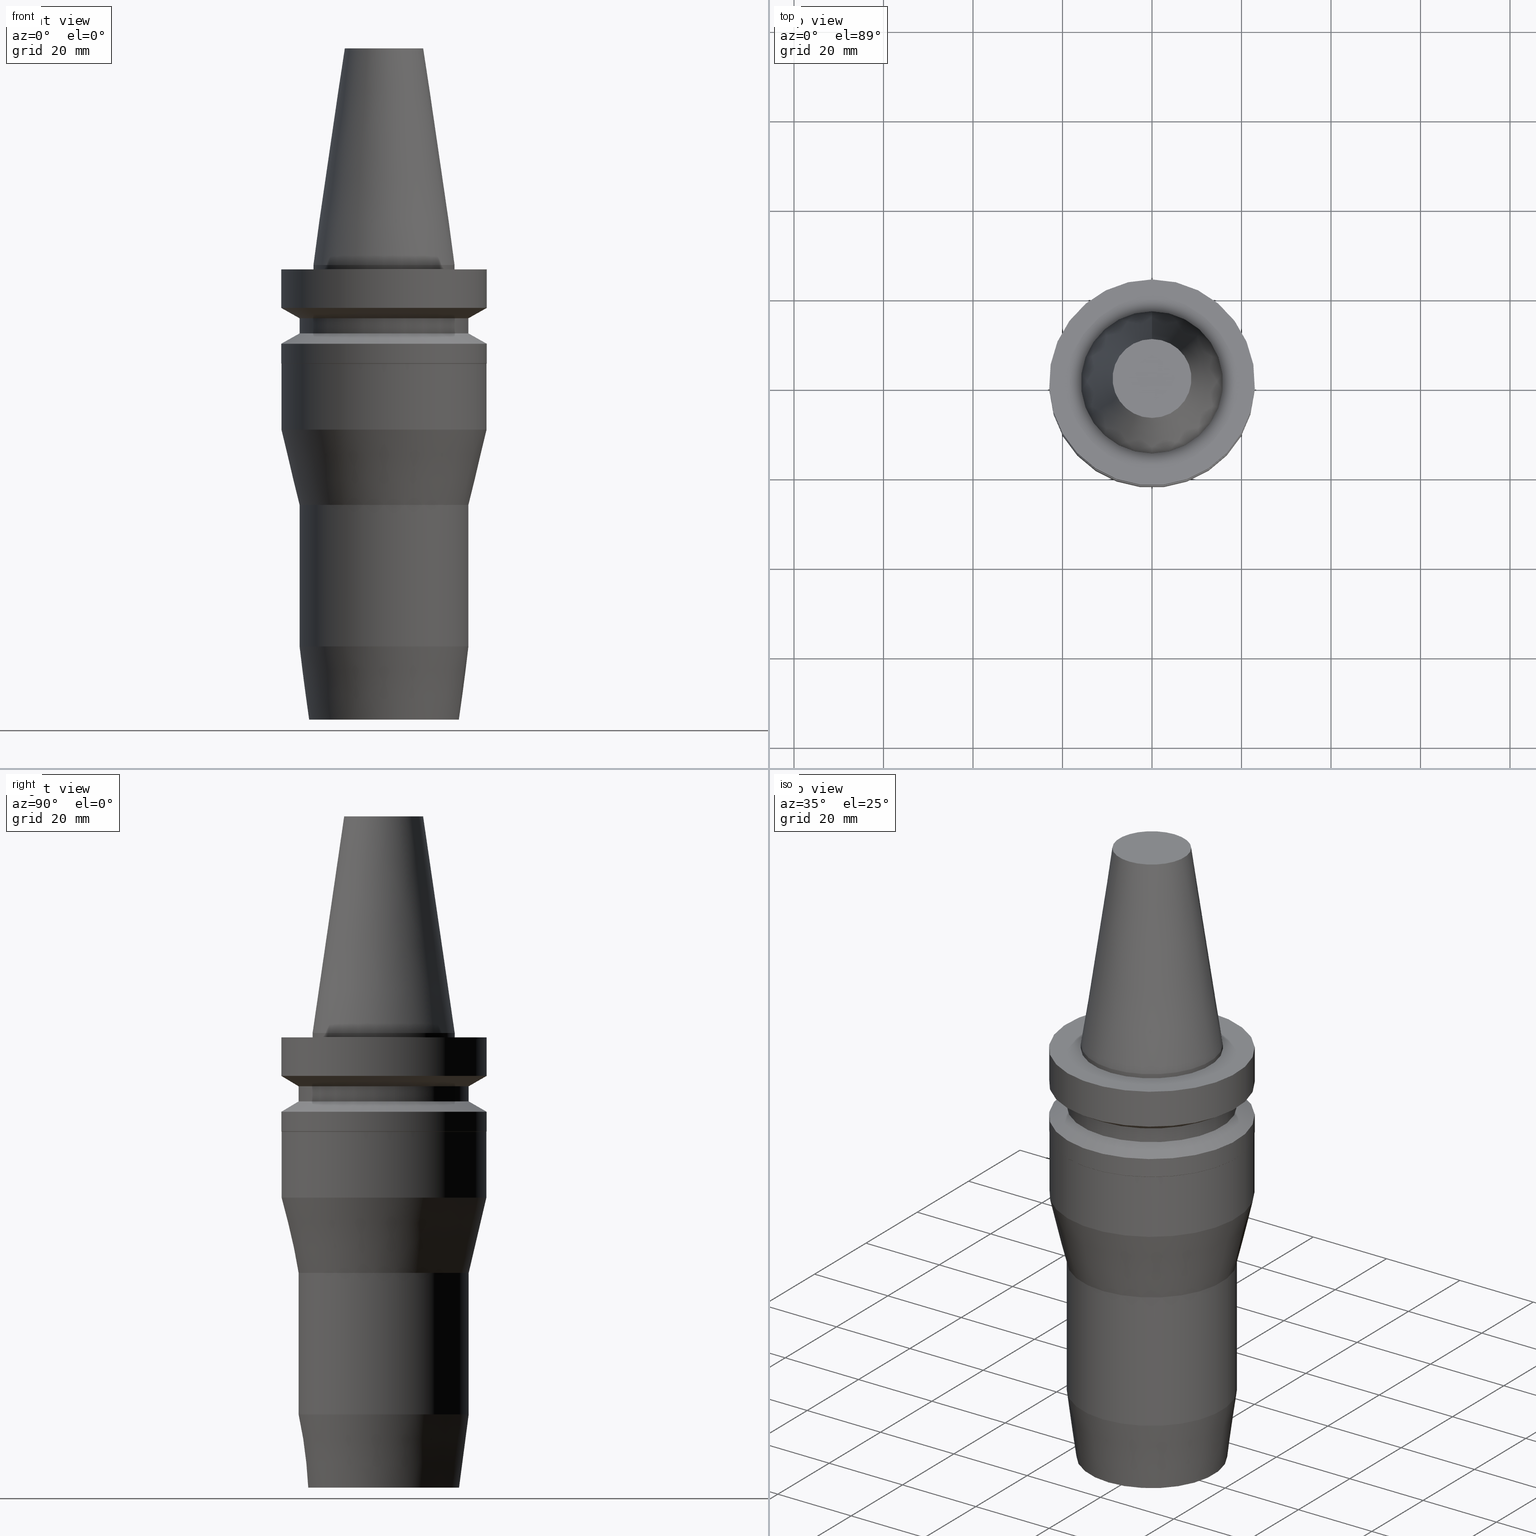
[diagram: canonical four-view strip — front | top / right | iso, engineering-drawing reading convention]
A machine part, canonical four-view strip (front | top / right | iso — engineering-drawing reading convention). The complete STEP part file that produces these views, byte-faithful:
ISO-10303-21;
HEADER;
FILE_DESCRIPTION((''),'1');
FILE_NAME('V:/90_\X2\53D65F9730C730FC30BF\X0\/00_\X2\6DE18DEF30C730FC30BF\X0\/ALL/BBT-BKUS\X2\FF76FF80FF9BFF78FF9E752852A05DE556F3\X0\201801/BBT30-HDC/BBT30-HDC.625-4.stp','2018-02-07T04:37:06',(''),(''),'Spatial Interop R21 SP3','Kubotek KeyCreator 2011 V10.0.2 (22737)',' ');
FILE_SCHEMA(('automotive_design'));
ENDSEC;
DATA;
#1=MECHANICAL_DESIGN_GEOMETRIC_PRESENTATION_REPRESENTATION(' ',(#10,#11,#12,#13,#14,#15,#16,#17,#18,#19,#20,#21,#22,#23,#24,#25,#26,#27,#28,#29,#30,#31,#32,#33,#34,#35,#36,#37,#38,#39),#6);
#2=PRODUCT_DEFINITION_CONTEXT('',#40,'design');
#3=APPLICATION_PROTOCOL_DEFINITION('INTERNATIONAL STANDARD','automotive_design',1994,#40);
#4=PRODUCT_CATEGORY_RELATIONSHIP('NONE','NONE',#41,#42);
#5=SHAPE_DEFINITION_REPRESENTATION(#43,#44);
#6= (GEOMETRIC_REPRESENTATION_CONTEXT(3)GLOBAL_UNCERTAINTY_ASSIGNED_CONTEXT((#47))GLOBAL_UNIT_ASSIGNED_CONTEXT((#49,#50,#51))REPRESENTATION_CONTEXT('NONE','WORKSPACE'));
#10=STYLED_ITEM('',(#53),#54);
#11=STYLED_ITEM('',(#55),#56);
#12=STYLED_ITEM('',(#57),#58);
#13=STYLED_ITEM('',(#59,#60),#61);
#14=STYLED_ITEM('',(#62),#63);
#15=STYLED_ITEM('',(#64),#65);
#16=STYLED_ITEM('',(#66,#67),#68);
#17=STYLED_ITEM('',(#69,#70),#71);
#18=STYLED_ITEM('',(#72),#73);
#19=STYLED_ITEM('',(#74,#75),#76);
#20=STYLED_ITEM('',(#77,#78),#79);
#21=STYLED_ITEM('',(#80,#81),#82);
#22=STYLED_ITEM('',(#83),#84);
#23=STYLED_ITEM('',(#85),#86);
#24=STYLED_ITEM('',(#87),#88);
#25=STYLED_ITEM('',(#89,#90),#91);
#26=STYLED_ITEM('',(#92),#93);
#27=STYLED_ITEM('',(#94,#95),#96);
#28=STYLED_ITEM('',(#97,#98),#99);
#29=STYLED_ITEM('',(#100,#101),#102);
#30=STYLED_ITEM('',(#103,#104),#105);
#31=STYLED_ITEM('',(#106),#107);
#32=STYLED_ITEM('',(#108,#109),#110);
#33=STYLED_ITEM('',(#111,#112),#113);
#34=STYLED_ITEM('',(#114),#115);
#35=STYLED_ITEM('',(#116),#117);
#36=STYLED_ITEM('',(#118,#119),#120);
#37=STYLED_ITEM('',(#121),#122);
#38=STYLED_ITEM('',(#123,#124),#125);
#39=STYLED_ITEM('',(#126,#127),#128);
#40=APPLICATION_CONTEXT(' ');
#41=PRODUCT_CATEGORY('part','NONE');
#42=PRODUCT_RELATED_PRODUCT_CATEGORY('detail',' ',(#129));
#43=PRODUCT_DEFINITION_SHAPE('NONE','NONE',#130);
#44=ADVANCED_BREP_SHAPE_REPRESENTATION('Unnamed[1]',(#110,#131),#6);
#47=UNCERTAINTY_MEASURE_WITH_UNIT(LENGTH_MEASURE(1.0E-006),#49,'','');
#49= (CONVERSION_BASED_UNIT('MILLIMETRE',#134)LENGTH_UNIT()NAMED_UNIT(#137));
#50= (NAMED_UNIT(#139)PLANE_ANGLE_UNIT()SI_UNIT($,.RADIAN.));
#51= (NAMED_UNIT(#139)SOLID_ANGLE_UNIT()SI_UNIT($,.STERADIAN.));
#53=PRESENTATION_STYLE_ASSIGNMENT((#145));
#54=EDGE_CURVE('Unnamed[1]',#146,#146,#147,.T.);
#55=PRESENTATION_STYLE_ASSIGNMENT((#148));
#56=EDGE_CURVE('Unnamed[1]',#149,#149,#150,.T.);
#57=PRESENTATION_STYLE_ASSIGNMENT((#151));
#58=EDGE_CURVE('Unnamed[1]',#152,#152,#153,.T.);
#59=PRESENTATION_STYLE_ASSIGNMENT((#154));
#60=PRESENTATION_STYLE_ASSIGNMENT((#155));
#61=ADVANCED_FACE('Unnamed[1]',(#156,#157),#158,.T.);
#62=PRESENTATION_STYLE_ASSIGNMENT((#159));
#63=EDGE_CURVE('Unnamed[1]',#160,#160,#161,.T.);
#64=PRESENTATION_STYLE_ASSIGNMENT((#162));
#65=EDGE_CURVE('Unnamed[1]',#163,#163,#164,.T.);
#66=PRESENTATION_STYLE_ASSIGNMENT((#165));
#67=PRESENTATION_STYLE_ASSIGNMENT((#166));
#68=ADVANCED_FACE('Unnamed[1]',(#167,#168),#169,.T.);
#69=PRESENTATION_STYLE_ASSIGNMENT((#170));
#70=PRESENTATION_STYLE_ASSIGNMENT((#171));
#71=ADVANCED_FACE('Unnamed[1]',(#172,#173),#174,.T.);
#72=PRESENTATION_STYLE_ASSIGNMENT((#175));
#73=EDGE_CURVE('Unnamed[1]',#176,#176,#177,.T.);
#74=PRESENTATION_STYLE_ASSIGNMENT((#178));
#75=PRESENTATION_STYLE_ASSIGNMENT((#179));
#76=ADVANCED_FACE('Unnamed[1]',(#180,#181),#182,.T.);
#77=PRESENTATION_STYLE_ASSIGNMENT((#183));
#78=PRESENTATION_STYLE_ASSIGNMENT((#184));
#79=ADVANCED_FACE('Unnamed[1]',(#185),#186,.T.);
#80=PRESENTATION_STYLE_ASSIGNMENT((#187));
#81=PRESENTATION_STYLE_ASSIGNMENT((#188));
#82=ADVANCED_FACE('Unnamed[1]',(#189,#190),#191,.T.);
#83=PRESENTATION_STYLE_ASSIGNMENT((#192));
#84=EDGE_CURVE('Unnamed[1]',#193,#193,#194,.T.);
#85=PRESENTATION_STYLE_ASSIGNMENT((#195));
#86=EDGE_CURVE('Unnamed[1]',#196,#196,#197,.T.);
#87=PRESENTATION_STYLE_ASSIGNMENT((#198));
#88=EDGE_CURVE('Unnamed[1]',#199,#199,#200,.T.);
#89=PRESENTATION_STYLE_ASSIGNMENT((#201));
#90=PRESENTATION_STYLE_ASSIGNMENT((#202));
#91=ADVANCED_FACE('Unnamed[1]',(#203,#204),#205,.T.);
#92=PRESENTATION_STYLE_ASSIGNMENT((#206));
#93=EDGE_CURVE('Unnamed[1]',#207,#207,#208,.T.);
#94=PRESENTATION_STYLE_ASSIGNMENT((#209));
#95=PRESENTATION_STYLE_ASSIGNMENT((#210));
#96=ADVANCED_FACE('Unnamed[1]',(#211),#212,.T.);
#97=PRESENTATION_STYLE_ASSIGNMENT((#213));
#98=PRESENTATION_STYLE_ASSIGNMENT((#214));
#99=ADVANCED_FACE('Unnamed[1]',(#215,#216),#217,.T.);
#100=PRESENTATION_STYLE_ASSIGNMENT((#218));
#101=PRESENTATION_STYLE_ASSIGNMENT((#219));
#102=ADVANCED_FACE('Unnamed[1]',(#220,#221),#222,.T.);
#103=PRESENTATION_STYLE_ASSIGNMENT((#223));
#104=PRESENTATION_STYLE_ASSIGNMENT((#224));
#105=ADVANCED_FACE('Unnamed[1]',(#225,#226),#227,.T.);
#106=PRESENTATION_STYLE_ASSIGNMENT((#228));
#107=EDGE_CURVE('Unnamed[1]',#229,#229,#230,.T.);
#108=PRESENTATION_STYLE_ASSIGNMENT((#231));
#109=PRESENTATION_STYLE_ASSIGNMENT((#232));
#110=MANIFOLD_SOLID_BREP('Unnamed[1]',#233);
#111=PRESENTATION_STYLE_ASSIGNMENT((#234));
#112=PRESENTATION_STYLE_ASSIGNMENT((#235));
#113=ADVANCED_FACE('Unnamed[1]',(#236,#237),#238,.T.);
#114=PRESENTATION_STYLE_ASSIGNMENT((#239));
#115=EDGE_CURVE('Unnamed[1]',#240,#240,#241,.T.);
#116=PRESENTATION_STYLE_ASSIGNMENT((#242));
#117=EDGE_CURVE('Unnamed[1]',#243,#243,#244,.T.);
#118=PRESENTATION_STYLE_ASSIGNMENT((#245));
#119=PRESENTATION_STYLE_ASSIGNMENT((#246));
#120=ADVANCED_FACE('Unnamed[1]',(#247,#248),#249,.T.);
#121=PRESENTATION_STYLE_ASSIGNMENT((#250));
#122=EDGE_CURVE('Unnamed[1]',#251,#251,#252,.T.);
#123=PRESENTATION_STYLE_ASSIGNMENT((#253));
#124=PRESENTATION_STYLE_ASSIGNMENT((#254));
#125=ADVANCED_FACE('Unnamed[1]',(#255,#256),#257,.T.);
#126=PRESENTATION_STYLE_ASSIGNMENT((#258));
#127=PRESENTATION_STYLE_ASSIGNMENT((#259));
#128=ADVANCED_FACE('Unnamed[1]',(#260,#261),#262,.T.);
#129=PRODUCT('Unnamed[1]','Unnamed[1]','PART-Unnamed[1]-DESC',(#263));
#130=PRODUCT_DEFINITION('NONE','NONE',#264,#2);
#131=AXIS2_PLACEMENT_3D('',#265,#266,#267);
#134=LENGTH_MEASURE_WITH_UNIT(LENGTH_MEASURE(1.0),#268);
#137=DIMENSIONAL_EXPONENTS(1.0,0.0,0.0,0.0,0.0,0.0,0.0);
#139=DIMENSIONAL_EXPONENTS(0.0,0.0,0.0,0.0,0.0,0.0,0.0);
#145=CURVE_STYLE('',#269,POSITIVE_LENGTH_MEASURE(1000.0),#270);
#146=VERTEX_POINT('',#271);
#147=CIRCLE('',#272,18.9999999999981);
#148=CURVE_STYLE('',#273,POSITIVE_LENGTH_MEASURE(1000.0),#274);
#149=VERTEX_POINT('',#275);
#150=CIRCLE('',#276,16.8455306051981);
#151=CURVE_STYLE('',#277,POSITIVE_LENGTH_MEASURE(1000.0),#278);
#152=VERTEX_POINT('',#279);
#153=CIRCLE('',#280,23.0);
#154=SURFACE_STYLE_USAGE(.BOTH.,#281);
#155=CURVE_STYLE('',#282,POSITIVE_LENGTH_MEASURE(1000.0),#283);
#156=FACE_BOUND('',#284,.T.);
#157=FACE_BOUND('',#285,.T.);
#158=CYLINDRICAL_SURFACE('',#286,22.9499999999998);
#159=CURVE_STYLE('',#287,POSITIVE_LENGTH_MEASURE(1000.0),#288);
#160=VERTEX_POINT('',#289);
#161=CIRCLE('',#290,8.81650000198669);
#162=CURVE_STYLE('',#291,POSITIVE_LENGTH_MEASURE(1000.0),#292);
#163=VERTEX_POINT('',#293);
#164=CIRCLE('',#294,22.9500000000002);
#165=SURFACE_STYLE_USAGE(.BOTH.,#295);
#166=CURVE_STYLE('',#296,POSITIVE_LENGTH_MEASURE(1000.0),#297);
#167=FACE_OUTER_BOUND('',#298,.T.);
#168=FACE_BOUND('',#299,.T.);
#169=PLANE('',#300);
#170=SURFACE_STYLE_USAGE(.BOTH.,#301);
#171=CURVE_STYLE('',#302,POSITIVE_LENGTH_MEASURE(1000.0),#303);
#172=FACE_BOUND('',#304,.T.);
#173=FACE_BOUND('',#305,.T.);
#174=CONICAL_SURFACE('',#306,22.9749999999997,0.785398163397164);
#175=CURVE_STYLE('',#307,POSITIVE_LENGTH_MEASURE(1000.0),#308);
#176=VERTEX_POINT('',#309);
#177=CIRCLE('',#310,15.875);
#178=SURFACE_STYLE_USAGE(.BOTH.,#311);
#179=CURVE_STYLE('',#312,POSITIVE_LENGTH_MEASURE(1000.0),#313);
#180=FACE_BOUND('',#314,.T.);
#181=FACE_BOUND('',#315,.T.);
#182=CONICAL_SURFACE('',#316,17.9227653025981,0.130899693899579);
#183=SURFACE_STYLE_USAGE(.BOTH.,#317);
#184=CURVE_STYLE('',#318,POSITIVE_LENGTH_MEASURE(1000.0),#319);
#185=FACE_OUTER_BOUND('',#320,.T.);
#186=PLANE('',#321);
#187=SURFACE_STYLE_USAGE(.BOTH.,#322);
#188=CURVE_STYLE('',#323,POSITIVE_LENGTH_MEASURE(1000.0),#324);
#189=FACE_BOUND('',#325,.T.);
#190=FACE_BOUND('',#326,.T.);
#191=CONICAL_SURFACE('',#327,21.0,1.04719755058881);
#192=CURVE_STYLE('',#328,POSITIVE_LENGTH_MEASURE(1000.0),#329);
#193=VERTEX_POINT('',#330);
#194=CIRCLE('',#331,23.0);
#195=CURVE_STYLE('',#332,POSITIVE_LENGTH_MEASURE(1000.0),#333);
#196=VERTEX_POINT('',#334);
#197=CIRCLE('',#335,22.9499999999995);
#198=CURVE_STYLE('',#336,POSITIVE_LENGTH_MEASURE(1000.0),#337);
#199=VERTEX_POINT('',#338);
#200=CIRCLE('',#339,15.875);
#201=SURFACE_STYLE_USAGE(.BOTH.,#340);
#202=CURVE_STYLE('',#341,POSITIVE_LENGTH_MEASURE(1000.0),#342);
#203=FACE_BOUND('',#343,.T.);
#204=FACE_BOUND('',#344,.T.);
#205=CYLINDRICAL_SURFACE('',#345,19.0);
#206=CURVE_STYLE('',#346,POSITIVE_LENGTH_MEASURE(1000.0),#347);
#207=VERTEX_POINT('',#348);
#208=CIRCLE('',#349,19.0000000000031);
#209=SURFACE_STYLE_USAGE(.BOTH.,#350);
#210=CURVE_STYLE('',#351,POSITIVE_LENGTH_MEASURE(1000.0),#352);
#211=FACE_OUTER_BOUND('',#353,.T.);
#212=PLANE('',#354);
#213=SURFACE_STYLE_USAGE(.BOTH.,#355);
#214=CURVE_STYLE('',#356,POSITIVE_LENGTH_MEASURE(1000.0),#357);
#215=FACE_BOUND('',#358,.T.);
#216=FACE_BOUND('',#359,.T.);
#217=CYLINDRICAL_SURFACE('',#360,15.875);
#218=SURFACE_STYLE_USAGE(.BOTH.,#361);
#219=CURVE_STYLE('',#362,POSITIVE_LENGTH_MEASURE(1000.0),#363);
#220=FACE_BOUND('',#364,.T.);
#221=FACE_BOUND('',#365,.T.);
#222=CONICAL_SURFACE('',#366,21.0,1.04719755058882);
#223=SURFACE_STYLE_USAGE(.BOTH.,#367);
#224=CURVE_STYLE('',#368,POSITIVE_LENGTH_MEASURE(1000.0),#369);
#225=FACE_BOUND('',#370,.T.);
#226=FACE_BOUND('',#371,.T.);
#227=CYLINDRICAL_SURFACE('',#372,23.0);
#228=CURVE_STYLE('',#373,POSITIVE_LENGTH_MEASURE(1000.0),#374);
#229=VERTEX_POINT('',#375);
#230=CIRCLE('',#376,19.0);
#231=SURFACE_STYLE_USAGE(.BOTH.,#377);
#232=CURVE_STYLE('',#378,POSITIVE_LENGTH_MEASURE(1000.0),#379);
#233=CLOSED_SHELL('',(#96,#125,#99,#68,#128,#82,#91,#102,#105,#71,#61,#120,#113,#76,#79));
#234=SURFACE_STYLE_USAGE(.BOTH.,#380);
#235=CURVE_STYLE('',#381,POSITIVE_LENGTH_MEASURE(1000.0),#382);
#236=FACE_BOUND('',#383,.T.);
#237=FACE_BOUND('',#384,.T.);
#238=CYLINDRICAL_SURFACE('',#385,19.0000000000006);
#239=CURVE_STYLE('',#386,POSITIVE_LENGTH_MEASURE(1000.0),#387);
#240=VERTEX_POINT('',#388);
#241=CIRCLE('',#389,23.0);
#242=CURVE_STYLE('',#390,POSITIVE_LENGTH_MEASURE(1000.0),#391);
#243=VERTEX_POINT('',#392);
#244=CIRCLE('',#393,19.0);
#245=SURFACE_STYLE_USAGE(.BOTH.,#394);
#246=CURVE_STYLE('',#395,POSITIVE_LENGTH_MEASURE(1000.0),#396);
#247=FACE_BOUND('',#397,.T.);
#248=FACE_BOUND('',#398,.T.);
#249=CONICAL_SURFACE('',#399,20.9750000000017,0.230924774695471);
#250=CURVE_STYLE('',#400,POSITIVE_LENGTH_MEASURE(1000.0),#401);
#251=VERTEX_POINT('',#402);
#252=CIRCLE('',#403,23.0);
#253=SURFACE_STYLE_USAGE(.BOTH.,#404);
#254=CURVE_STYLE('',#405,POSITIVE_LENGTH_MEASURE(1000.0),#406);
#255=FACE_BOUND('',#407,.T.);
#256=FACE_BOUND('',#408,.T.);
#257=CONICAL_SURFACE('',#409,12.3457500009933,0.144815870013618);
#258=SURFACE_STYLE_USAGE(.BOTH.,#410);
#259=CURVE_STYLE('',#411,POSITIVE_LENGTH_MEASURE(1000.0),#412);
#260=FACE_BOUND('',#413,.T.);
#261=FACE_BOUND('',#414,.T.);
#262=CYLINDRICAL_SURFACE('',#415,23.0);
#263=PRODUCT_CONTEXT('',#40,'mechanical');
#264=PRODUCT_DEFINITION_FORMATION_WITH_SPECIFIED_SOURCE(' ','NONE',#129,.NOT_KNOWN.);
#265=CARTESIAN_POINT('',(0.0,0.0,0.0));
#266=DIRECTION('',(0.0,0.0,1.0));
#267=DIRECTION('',(1.0,0.0,0.0));
#268= (NAMED_UNIT(#137)LENGTH_UNIT()SI_UNIT(.MILLI.,.METRE.));
#269=DRAUGHTING_PRE_DEFINED_CURVE_FONT('continuous');
#270=COLOUR_RGB('',0.0,1.0,0.0);
#271=CARTESIAN_POINT('',(5.21914953239817E-015,18.9999999999981,-85.2351802337122));
#272=AXIS2_PLACEMENT_3D('',#417,#418,#419);
#273=DRAUGHTING_PRE_DEFINED_CURVE_FONT('continuous');
#274=COLOUR_RGB('',0.0,1.0,0.0);
#275=CARTESIAN_POINT('',(6.22120573966879E-015,16.8455306051981,-101.600000000004));
#276=AXIS2_PLACEMENT_3D('',#420,#421,#422);
#277=DRAUGHTING_PRE_DEFINED_CURVE_FONT('continuous');
#278=COLOUR_RGB('',0.0,1.0,0.0);
#279=CARTESIAN_POINT('',(1.07768918324967E-015,23.0,-17.6));
#280=AXIS2_PLACEMENT_3D('',#423,#424,#425);
#281=SURFACE_SIDE_STYLE('',(#426));
#282=DRAUGHTING_PRE_DEFINED_CURVE_FONT('continuous');
#283=COLOUR_RGB('',0.0,1.0,0.0);
#284=EDGE_LOOP('',(#427));
#285=EDGE_LOOP('',(#428));
#286=AXIS2_PLACEMENT_3D('',#429,#430,#431);
#287=DRAUGHTING_PRE_DEFINED_CURVE_FONT('continuous');
#288=COLOUR_RGB('',0.0,1.0,0.0);
#289=CARTESIAN_POINT('',(-2.96364525393659E-015,8.81650000198669,48.4));
#290=AXIS2_PLACEMENT_3D('',#432,#433,#434);
#291=DRAUGHTING_PRE_DEFINED_CURVE_FONT('continuous');
#292=COLOUR_RGB('',0.0,1.0,0.0);
#293=CARTESIAN_POINT('',(2.25335011043082E-015,22.9500000000002,-36.7999999999949));
#294=AXIS2_PLACEMENT_3D('',#435,#436,#437);
#295=SURFACE_SIDE_STYLE('',(#438));
#296=DRAUGHTING_PRE_DEFINED_CURVE_FONT('continuous');
#297=COLOUR_RGB('',0.0,1.0,0.0);
#298=EDGE_LOOP('',(#439));
#299=EDGE_LOOP('',(#440));
#300=AXIS2_PLACEMENT_3D('',#441,#442,#443);
#301=SURFACE_SIDE_STYLE('',(#444));
#302=DRAUGHTING_PRE_DEFINED_CURVE_FONT('continuous');
#303=COLOUR_RGB('',0.0,1.0,0.0);
#304=EDGE_LOOP('',(#445));
#305=EDGE_LOOP('',(#446));
#306=AXIS2_PLACEMENT_3D('',#447,#448,#449);
#307=DRAUGHTING_PRE_DEFINED_CURVE_FONT('continuous');
#308=COLOUR_RGB('',0.0,1.0,0.0);
#309=CARTESIAN_POINT('',(6.12323399573675E-017,15.875,-0.999999999999998));
#310=AXIS2_PLACEMENT_3D('',#450,#451,#452);
#311=SURFACE_SIDE_STYLE('',(#453));
#312=DRAUGHTING_PRE_DEFINED_CURVE_FONT('continuous');
#313=COLOUR_RGB('',0.0,1.0,0.0);
#314=EDGE_LOOP('',(#454));
#315=EDGE_LOOP('',(#455));
#316=AXIS2_PLACEMENT_3D('',#456,#457,#458);
#317=SURFACE_SIDE_STYLE('',(#459));
#318=DRAUGHTING_PRE_DEFINED_CURVE_FONT('continuous');
#319=COLOUR_RGB('',0.0,1.0,0.0);
#320=EDGE_LOOP('',(#460));
#321=AXIS2_PLACEMENT_3D('',#461,#462,#463);
#322=SURFACE_SIDE_STYLE('',(#464));
#323=DRAUGHTING_PRE_DEFINED_CURVE_FONT('continuous');
#324=COLOUR_RGB('',0.0,1.0,0.0);
#325=EDGE_LOOP('',(#465));
#326=EDGE_LOOP('',(#466));
#327=AXIS2_PLACEMENT_3D('',#467,#468,#469);
#328=DRAUGHTING_PRE_DEFINED_CURVE_FONT('continuous');
#329=COLOUR_RGB('',0.0,1.0,0.0);
#330=CARTESIAN_POINT('',(1.34711147906216E-015,23.0,-22.0000000000012));
#331=AXIS2_PLACEMENT_3D('',#470,#471,#472);
#332=DRAUGHTING_PRE_DEFINED_CURVE_FONT('continuous');
#333=COLOUR_RGB('',0.0,1.0,0.0);
#334=CARTESIAN_POINT('',(1.35017309606007E-015,22.9499999999995,-22.0500000000018));
#335=AXIS2_PLACEMENT_3D('',#473,#474,#475);
#336=DRAUGHTING_PRE_DEFINED_CURVE_FONT('continuous');
#337=COLOUR_RGB('',0.0,1.0,0.0);
#338=CARTESIAN_POINT('',(-1.95674482349743E-031,15.875,1.94412679364642E-015));
#339=AXIS2_PLACEMENT_3D('',#476,#477,#478);
#340=SURFACE_SIDE_STYLE('',(#479));
#341=DRAUGHTING_PRE_DEFINED_CURVE_FONT('continuous');
#342=COLOUR_RGB('',0.0,1.0,0.0);
#343=EDGE_LOOP('',(#480));
#344=EDGE_LOOP('',(#481));
#345=AXIS2_PLACEMENT_3D('',#482,#483,#484);
#346=DRAUGHTING_PRE_DEFINED_CURVE_FONT('continuous');
#347=COLOUR_RGB('',0.0,1.0,0.0);
#348=CARTESIAN_POINT('',(3.28205342171516E-015,19.0000000000031,-53.6000000000042));
#349=AXIS2_PLACEMENT_3D('',#485,#486,#487);
#350=SURFACE_SIDE_STYLE('',(#488));
#351=DRAUGHTING_PRE_DEFINED_CURVE_FONT('continuous');
#352=COLOUR_RGB('',0.0,1.0,0.0);
#353=EDGE_LOOP('',(#489));
#354=AXIS2_PLACEMENT_3D('',#490,#491,#492);
#355=SURFACE_SIDE_STYLE('',(#493));
#356=DRAUGHTING_PRE_DEFINED_CURVE_FONT('continuous');
#357=COLOUR_RGB('',0.0,1.0,0.0);
#358=EDGE_LOOP('',(#494));
#359=EDGE_LOOP('',(#495));
#360=AXIS2_PLACEMENT_3D('',#496,#497,#498);
#361=SURFACE_SIDE_STYLE('',(#499));
#362=DRAUGHTING_PRE_DEFINED_CURVE_FONT('continuous');
#363=COLOUR_RGB('',0.0,1.0,0.0);
#364=EDGE_LOOP('',(#500));
#365=EDGE_LOOP('',(#501));
#366=AXIS2_PLACEMENT_3D('',#502,#503,#504);
#367=SURFACE_SIDE_STYLE('',(#505));
#368=DRAUGHTING_PRE_DEFINED_CURVE_FONT('continuous');
#369=COLOUR_RGB('',0.0,1.0,0.0);
#370=EDGE_LOOP('',(#506));
#371=EDGE_LOOP('',(#507));
#372=AXIS2_PLACEMENT_3D('',#508,#509,#510);
#373=DRAUGHTING_PRE_DEFINED_CURVE_FONT('continuous');
#374=COLOUR_RGB('',0.0,1.0,0.0);
#375=CARTESIAN_POINT('',(7.29240495619202E-016,19.0,-11.90940108));
#376=AXIS2_PLACEMENT_3D('',#511,#512,#513);
#377=SURFACE_SIDE_STYLE('',(#514));
#378=DRAUGHTING_PRE_DEFINED_CURVE_FONT('continuous');
#379=COLOUR_RGB('',0.0,1.0,0.0);
#380=SURFACE_SIDE_STYLE('',(#515));
#381=DRAUGHTING_PRE_DEFINED_CURVE_FONT('continuous');
#382=COLOUR_RGB('',0.0,1.0,0.0);
#383=EDGE_LOOP('',(#516));
#384=EDGE_LOOP('',(#517));
#385=AXIS2_PLACEMENT_3D('',#518,#519,#520);
#386=DRAUGHTING_PRE_DEFINED_CURVE_FONT('continuous');
#387=COLOUR_RGB('',0.0,1.0,0.0);
#388=CARTESIAN_POINT('',(5.87830463590729E-016,23.0,-9.59999999999999));
#389=AXIS2_PLACEMENT_3D('',#521,#522,#523);
#390=DRAUGHTING_PRE_DEFINED_CURVE_FONT('continuous');
#391=COLOUR_RGB('',0.0,1.0,0.0);
#392=CARTESIAN_POINT('',(9.36279151221199E-016,19.0,-15.29059892));
#393=AXIS2_PLACEMENT_3D('',#524,#525,#526);
#394=SURFACE_SIDE_STYLE('',(#527));
#395=DRAUGHTING_PRE_DEFINED_CURVE_FONT('continuous');
#396=COLOUR_RGB('',0.0,1.0,0.0);
#397=EDGE_LOOP('',(#528));
#398=EDGE_LOOP('',(#529));
#399=AXIS2_PLACEMENT_3D('',#530,#531,#532);
#400=DRAUGHTING_PRE_DEFINED_CURVE_FONT('continuous');
#401=COLOUR_RGB('',0.0,1.0,0.0);
#402=CARTESIAN_POINT('',(6.12323399573674E-017,23.0,-0.999999999999997));
#403=AXIS2_PLACEMENT_3D('',#533,#534,#535);
#404=SURFACE_SIDE_STYLE('',(#536));
#405=DRAUGHTING_PRE_DEFINED_CURVE_FONT('continuous');
#406=COLOUR_RGB('',0.0,1.0,0.0);
#407=EDGE_LOOP('',(#537));
#408=EDGE_LOOP('',(#538));
#409=AXIS2_PLACEMENT_3D('',#539,#540,#541);
#410=SURFACE_SIDE_STYLE('',(#542));
#411=DRAUGHTING_PRE_DEFINED_CURVE_FONT('continuous');
#412=COLOUR_RGB('',0.0,1.0,0.0);
#413=EDGE_LOOP('',(#543));
#414=EDGE_LOOP('',(#544));
#415=AXIS2_PLACEMENT_3D('',#545,#546,#547);
#417=CARTESIAN_POINT('',(5.21914953239817E-015,1.04382990647963E-014,-85.2351802337122));
#418=DIRECTION('',(6.12323399573677E-017,1.22464679914735E-016,-1.0));
#419=DIRECTION('',(-1.23259516440783E-032,1.0,1.22464679914735E-016));
#420=CARTESIAN_POINT('',(6.22120573966879E-015,1.24424114793376E-014,-101.600000000004));
#421=DIRECTION('',(6.12323399573677E-017,1.22464679914735E-016,-1.0));
#422=DIRECTION('',(-1.23259516440783E-032,1.0,1.22464679914735E-016));
#423=CARTESIAN_POINT('',(1.07768918324967E-015,2.15537836649934E-015,-17.6));
#424=DIRECTION('',(6.12323399573677E-017,1.22464679914735E-016,-1.0));
#425=DIRECTION('',(-1.23259516440783E-032,1.0,1.22464679914735E-016));
#426=SURFACE_STYLE_FILL_AREA(#548);
#427=ORIENTED_EDGE('',*,*,#65,.F.);
#428=ORIENTED_EDGE('',*,*,#86,.T.);
#429=CARTESIAN_POINT('',(1.80176160324544E-015,3.60352320649089E-015,-29.4249999999984));
#430=DIRECTION('',(6.12323399573677E-017,1.22464679914735E-016,-1.0));
#431=DIRECTION('',(-1.23259516440783E-032,1.0,1.22464679914735E-016));
#432=CARTESIAN_POINT('',(-2.96364525393659E-015,-5.92729050787319E-015,48.4));
#433=DIRECTION('',(6.12323399573677E-017,1.22464679914735E-016,-1.0));
#434=DIRECTION('',(-1.23259516440783E-032,1.0,1.22464679914735E-016));
#435=CARTESIAN_POINT('',(2.25335011043082E-015,4.50670022086164E-015,-36.7999999999949));
#436=DIRECTION('',(6.12323399573677E-017,1.22464679914735E-016,-1.0));
#437=DIRECTION('',(-1.23259516440783E-032,1.0,1.22464679914735E-016));
#438=SURFACE_STYLE_FILL_AREA(#549);
#439=ORIENTED_EDGE('',*,*,#122,.F.);
#440=ORIENTED_EDGE('',*,*,#73,.T.);
#441=CARTESIAN_POINT('',(6.12323399573674E-017,19.4375,-0.999999999999998));
#442=DIRECTION('',(-6.12323399573677E-017,-1.22464679914735E-016,1.0));
#443=DIRECTION('',(1.23259516440783E-032,-1.0,-1.22464679914735E-016));
#444=SURFACE_STYLE_FILL_AREA(#550);
#445=ORIENTED_EDGE('',*,*,#86,.F.);
#446=ORIENTED_EDGE('',*,*,#84,.T.);
#447=CARTESIAN_POINT('',(1.34864228756112E-015,2.69728457512223E-015,-22.0250000000015));
#448=DIRECTION('',(-6.12323399573677E-017,-1.22464679914735E-016,1.0));
#449=DIRECTION('',(-1.23259516440783E-032,1.0,1.22464679914735E-016));
#450=CARTESIAN_POINT('',(6.12323399573677E-017,1.22464679914735E-016,-1.0));
#451=DIRECTION('',(6.12323399573677E-017,1.22464679914735E-016,-1.0));
#452=DIRECTION('',(-1.23259516440783E-032,1.0,1.22464679914735E-016));
#453=SURFACE_STYLE_FILL_AREA(#551);
#454=ORIENTED_EDGE('',*,*,#56,.F.);
#455=ORIENTED_EDGE('',*,*,#54,.T.);
#456=CARTESIAN_POINT('',(5.72017763603348E-015,1.1440355272067E-014,-93.417590116858));
#457=DIRECTION('',(-6.12323399573676E-017,-1.22464679914735E-016,1.0));
#458=DIRECTION('',(-1.23259516440783E-032,1.0,1.22464679914735E-016));
#459=SURFACE_STYLE_FILL_AREA(#552);
#460=ORIENTED_EDGE('',*,*,#56,.T.);
#461=CARTESIAN_POINT('',(6.22120573966867E-015,8.42276530259908,-101.600000000002));
#462=DIRECTION('',(6.12323399573677E-017,-2.19212996609288E-013,-1.0));
#463=DIRECTION('',(1.34180975787225E-029,1.0,-2.19212996609288E-013));
#464=SURFACE_STYLE_FILL_AREA(#553);
#465=ORIENTED_EDGE('',*,*,#107,.F.);
#466=ORIENTED_EDGE('',*,*,#115,.T.);
#467=CARTESIAN_POINT('',(6.58535479604966E-016,1.31707095920993E-015,-10.75470054));
#468=DIRECTION('',(-6.12323399573677E-017,-1.22464679914735E-016,1.0));
#469=DIRECTION('',(-1.23259516440783E-032,1.0,1.22464679914735E-016));
#470=CARTESIAN_POINT('',(1.34711147906216E-015,2.69422295812433E-015,-22.0000000000012));
#471=DIRECTION('',(6.12323399573677E-017,1.22464679914735E-016,-1.0));
#472=DIRECTION('',(-1.23259516440783E-032,1.0,1.22464679914735E-016));
#473=CARTESIAN_POINT('',(1.35017309606007E-015,2.70034619212013E-015,-22.0500000000018));
#474=DIRECTION('',(6.12323399573677E-017,1.22464679914735E-016,-1.0));
#475=DIRECTION('',(-1.23259516440783E-032,1.0,1.22464679914735E-016));
#476=CARTESIAN_POINT('',(0.0,0.0,0.0));
#477=DIRECTION('',(6.12323399573677E-017,1.22464679914735E-016,-1.0));
#478=DIRECTION('',(-1.23259516440783E-032,1.0,1.22464679914735E-016));
#479=SURFACE_STYLE_FILL_AREA(#554);
#480=ORIENTED_EDGE('',*,*,#117,.F.);
#481=ORIENTED_EDGE('',*,*,#107,.T.);
#482=CARTESIAN_POINT('',(8.32759823420201E-016,1.6655196468404E-015,-13.6));
#483=DIRECTION('',(6.12323399573677E-017,1.22464679914735E-016,-1.0));
#484=DIRECTION('',(-1.23259516440783E-032,1.0,1.22464679914735E-016));
#485=CARTESIAN_POINT('',(3.28205342171516E-015,6.56410684343032E-015,-53.6000000000042));
#486=DIRECTION('',(6.12323399573677E-017,1.22464679914735E-016,-1.0));
#487=DIRECTION('',(-1.23259516440783E-032,1.0,1.22464679914735E-016));
#488=SURFACE_STYLE_FILL_AREA(#555);
#489=ORIENTED_EDGE('',*,*,#63,.F.);
#490=CARTESIAN_POINT('',(-2.96364525393659E-015,4.40825000099334,48.4));
#491=DIRECTION('',(-6.12323399573677E-017,-1.22464679914735E-016,1.0));
#492=DIRECTION('',(1.23259516440783E-032,-1.0,-1.22464679914735E-016));
#493=SURFACE_STYLE_FILL_AREA(#556);
#494=ORIENTED_EDGE('',*,*,#73,.F.);
#495=ORIENTED_EDGE('',*,*,#88,.T.);
#496=CARTESIAN_POINT('',(3.06161699786838E-017,6.12323399573676E-017,-0.5));
#497=DIRECTION('',(6.12323399573677E-017,1.22464679914735E-016,-1.0));
#498=DIRECTION('',(-1.23259516440783E-032,1.0,1.22464679914735E-016));
#499=SURFACE_STYLE_FILL_AREA(#557);
#500=ORIENTED_EDGE('',*,*,#58,.F.);
#501=ORIENTED_EDGE('',*,*,#117,.T.);
#502=CARTESIAN_POINT('',(1.00698416723543E-015,2.01396833447087E-015,-16.44529946));
#503=DIRECTION('',(6.12323399573677E-017,1.22464679914735E-016,-1.0));
#504=DIRECTION('',(-1.23259516440783E-032,1.0,1.22464679914735E-016));
#505=SURFACE_STYLE_FILL_AREA(#558);
#506=ORIENTED_EDGE('',*,*,#84,.F.);
#507=ORIENTED_EDGE('',*,*,#58,.T.);
#508=CARTESIAN_POINT('',(1.21240033115592E-015,2.42480066231183E-015,-19.8000000000006));
#509=DIRECTION('',(6.12323399573677E-017,1.22464679914735E-016,-1.0));
#510=DIRECTION('',(-1.23259516440783E-032,1.0,1.22464679914735E-016));
#511=CARTESIAN_POINT('',(7.29240495619202E-016,1.4584809912384E-015,-11.90940108));
#512=DIRECTION('',(6.12323399573677E-017,1.22464679914735E-016,-1.0));
#513=DIRECTION('',(-1.23259516440783E-032,1.0,1.22464679914735E-016));
#514=SURFACE_STYLE_FILL_AREA(#559);
#515=SURFACE_STYLE_FILL_AREA(#560);
#516=ORIENTED_EDGE('',*,*,#54,.F.);
#517=ORIENTED_EDGE('',*,*,#93,.T.);
#518=CARTESIAN_POINT('',(4.25060147705666E-015,8.50120295411333E-015,-69.4175901168582));
#519=DIRECTION('',(6.12323399573676E-017,1.22464679914735E-016,-1.0));
#520=DIRECTION('',(-1.23259516440783E-032,1.0,1.22464679914735E-016));
#521=CARTESIAN_POINT('',(5.87830463590729E-016,1.17566092718146E-015,-9.59999999999999));
#522=DIRECTION('',(6.12323399573677E-017,1.22464679914735E-016,-1.0));
#523=DIRECTION('',(-1.23259516440783E-032,1.0,1.22464679914735E-016));
#524=CARTESIAN_POINT('',(9.36279151221199E-016,1.8725583024424E-015,-15.29059892));
#525=DIRECTION('',(6.12323399573677E-017,1.22464679914735E-016,-1.0));
#526=DIRECTION('',(-1.23259516440783E-032,1.0,1.22464679914735E-016));
#527=SURFACE_STYLE_FILL_AREA(#561);
#528=ORIENTED_EDGE('',*,*,#93,.F.);
#529=ORIENTED_EDGE('',*,*,#65,.T.);
#530=CARTESIAN_POINT('',(2.76770176607299E-015,5.53540353214598E-015,-45.1999999999995));
#531=DIRECTION('',(-6.12323399573676E-017,-1.22464679914735E-016,1.0));
#532=DIRECTION('',(-1.23259516440783E-032,1.0,1.22464679914735E-016));
#533=CARTESIAN_POINT('',(6.12323399573677E-017,1.22464679914735E-016,-1.0));
#534=DIRECTION('',(6.12323399573677E-017,1.22464679914735E-016,-1.0));
#535=DIRECTION('',(-1.23259516440783E-032,1.0,1.22464679914735E-016));
#536=SURFACE_STYLE_FILL_AREA(#562);
#537=ORIENTED_EDGE('',*,*,#88,.F.);
#538=ORIENTED_EDGE('',*,*,#63,.T.);
#539=CARTESIAN_POINT('',(-1.4818226269683E-015,-2.96364525393659E-015,24.2));
#540=DIRECTION('',(6.12323399573677E-017,1.22464679914735E-016,-1.0));
#541=DIRECTION('',(-1.23259516440783E-032,1.0,1.22464679914735E-016));
#542=SURFACE_STYLE_FILL_AREA(#563);
#543=ORIENTED_EDGE('',*,*,#115,.F.);
#544=ORIENTED_EDGE('',*,*,#122,.T.);
#545=CARTESIAN_POINT('',(3.24531401774048E-016,6.49062803548097E-016,-5.3));
#546=DIRECTION('',(6.12323399573677E-017,1.22464679914735E-016,-1.0));
#547=DIRECTION('',(-1.23259516440783E-032,1.0,1.22464679914735E-016));
#548=FILL_AREA_STYLE('',(#564));
#549=FILL_AREA_STYLE('',(#565));
#550=FILL_AREA_STYLE('',(#566));
#551=FILL_AREA_STYLE('',(#567));
#552=FILL_AREA_STYLE('',(#568));
#553=FILL_AREA_STYLE('',(#569));
#554=FILL_AREA_STYLE('',(#570));
#555=FILL_AREA_STYLE('',(#571));
#556=FILL_AREA_STYLE('',(#572));
#557=FILL_AREA_STYLE('',(#573));
#558=FILL_AREA_STYLE('',(#574));
#559=FILL_AREA_STYLE('',(#575));
#560=FILL_AREA_STYLE('',(#576));
#561=FILL_AREA_STYLE('',(#577));
#562=FILL_AREA_STYLE('',(#578));
#563=FILL_AREA_STYLE('',(#579));
#564=FILL_AREA_STYLE_COLOUR('',#580);
#565=FILL_AREA_STYLE_COLOUR('',#581);
#566=FILL_AREA_STYLE_COLOUR('',#582);
#567=FILL_AREA_STYLE_COLOUR('',#583);
#568=FILL_AREA_STYLE_COLOUR('',#584);
#569=FILL_AREA_STYLE_COLOUR('',#585);
#570=FILL_AREA_STYLE_COLOUR('',#586);
#571=FILL_AREA_STYLE_COLOUR('',#587);
#572=FILL_AREA_STYLE_COLOUR('',#588);
#573=FILL_AREA_STYLE_COLOUR('',#589);
#574=FILL_AREA_STYLE_COLOUR('',#590);
#575=FILL_AREA_STYLE_COLOUR('',#591);
#576=FILL_AREA_STYLE_COLOUR('',#592);
#577=FILL_AREA_STYLE_COLOUR('',#593);
#578=FILL_AREA_STYLE_COLOUR('',#594);
#579=FILL_AREA_STYLE_COLOUR('',#595);
#580=COLOUR_RGB('',0.0,1.0,0.0);
#581=COLOUR_RGB('',0.0,1.0,0.0);
#582=COLOUR_RGB('',0.0,1.0,0.0);
#583=COLOUR_RGB('',0.0,1.0,0.0);
#584=COLOUR_RGB('',0.0,1.0,0.0);
#585=COLOUR_RGB('',0.0,1.0,0.0);
#586=COLOUR_RGB('',0.0,1.0,0.0);
#587=COLOUR_RGB('',0.0,1.0,0.0);
#588=COLOUR_RGB('',0.0,1.0,0.0);
#589=COLOUR_RGB('',0.0,1.0,0.0);
#590=COLOUR_RGB('',0.0,1.0,0.0);
#591=COLOUR_RGB('',0.0,1.0,0.0);
#592=COLOUR_RGB('',0.0,1.0,0.0);
#593=COLOUR_RGB('',0.0,1.0,0.0);
#594=COLOUR_RGB('',0.0,1.0,0.0);
#595=COLOUR_RGB('',0.0,1.0,0.0);
ENDSEC;
END-ISO-10303-21;
